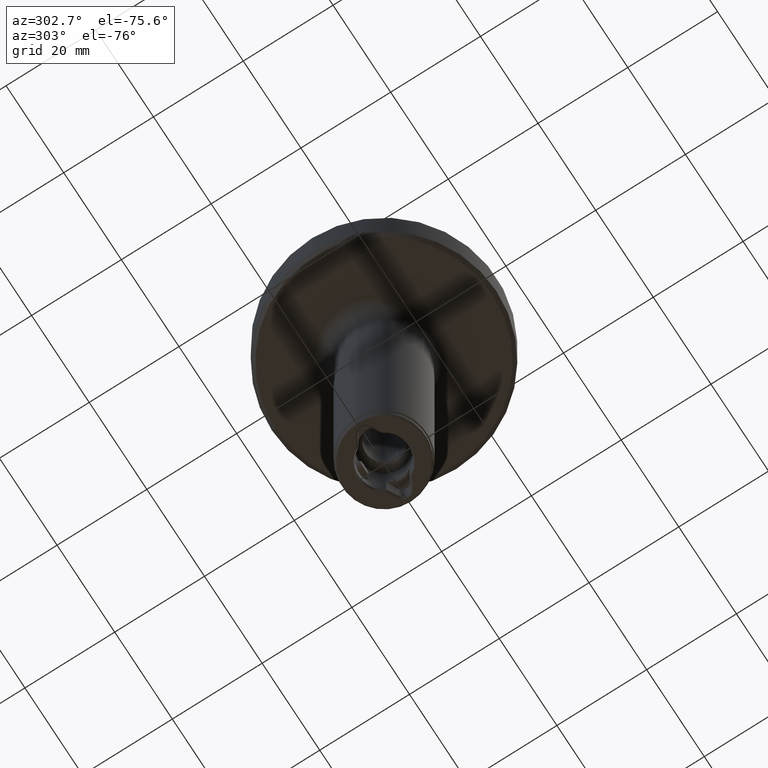
[diagram: clean part render]
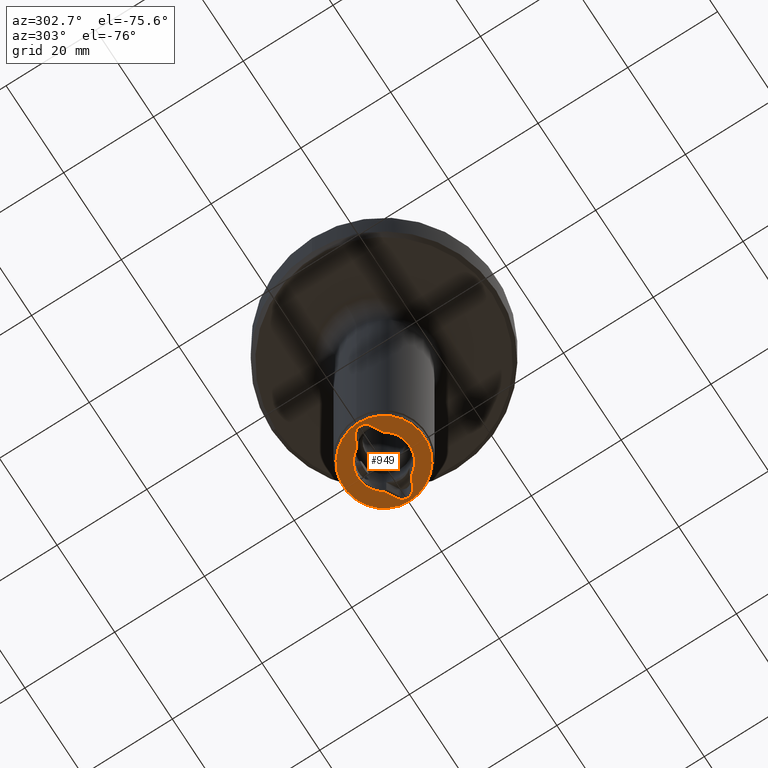
[diagram: same view with one face highlighted and labeled with its STEP entity id]
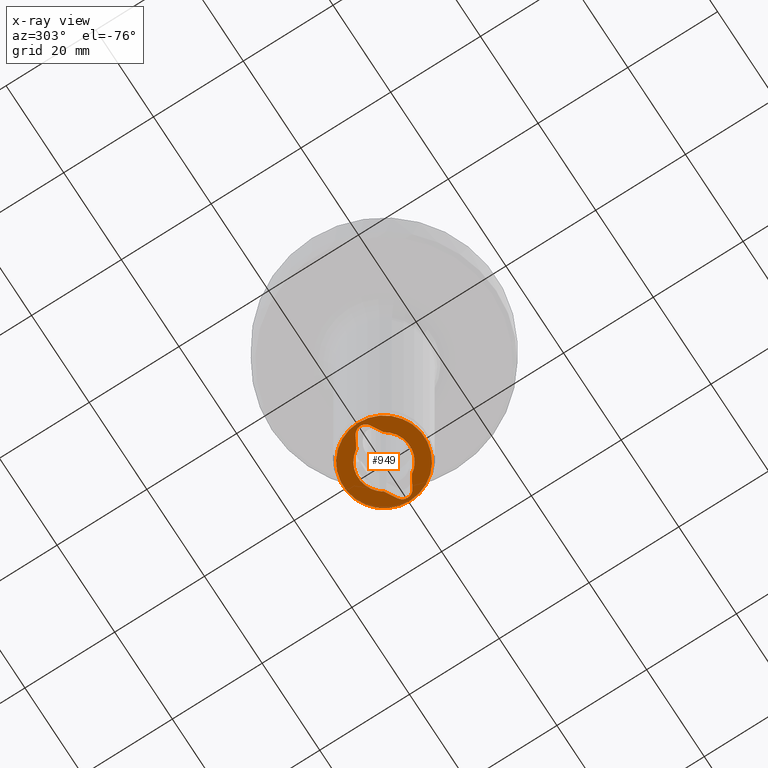
[diagram: x-ray of the same camera — body ghosted, the highlighted face saturated]
A machine part, auxiliary view. The second image highlights one B-rep face of the part: STEP entity #949.
The next image is the same camera in x-ray: the body ghosted, the highlighted face saturated — about 0% of this face is hidden behind the body in this view.
In plain terms, the highlighted planar face has unit normal (0, 0, -1).
Its self-contained STEP definition (entity closure, byte-faithful):
#547=VERTEX_POINT('NONE',#1572);
#593=EDGE_CURVE('NONE',#1399,#1239,#1622,.T.);
#621=EDGE_CURVE('NONE',#1239,#1043,#1653,.T.);
#637=EDGE_CURVE('NONE',#881,#873,#1671,.T.);
#639=VERTEX_POINT('NONE',#1673);
#655=EDGE_CURVE('NONE',#935,#1399,#1692,.T.);
#675=EDGE_CURVE('NONE',#1043,#1487,#1713,.T.);
#711=EDGE_CURVE('NONE',#935,#873,#1752,.T.);
#793=VERTEX_POINT('NONE',#1843);
#849=EDGE_CURVE('NONE',#639,#877,#1904,.T.);
#873=VERTEX_POINT('NONE',#1930);
#877=VERTEX_POINT('NONE',#1934);
#881=VERTEX_POINT('NONE',#1938);
#935=VERTEX_POINT('NONE',#2001);
#949=ADVANCED_FACE('NONE',(#2017,#2018),#2019,.T.);
#1043=VERTEX_POINT('NONE',#2124);
#1101=VERTEX_POINT('NONE',#2191);
#1107=EDGE_CURVE('NONE',#793,#881,#2197,.T.);
#1117=EDGE_CURVE('NONE',#547,#793,#2207,.T.);
#1205=EDGE_CURVE('NONE',#1101,#547,#2304,.T.);
#1239=VERTEX_POINT('',#2342);
#1283=EDGE_CURVE('NONE',#877,#639,#2391,.T.);
#1399=VERTEX_POINT('NONE',#2522);
#1487=VERTEX_POINT('NONE',#2625);
#1525=EDGE_CURVE('NONE',#1101,#1487,#2666,.T.);
#1572=CARTESIAN_POINT('',(-7.30000000000001,-1.64544826719043,-87.5));
#1622=CIRCLE('',#2777,1.9);
#1653=CIRCLE('',#2854,1.9);
#1671=LINE('',#2873,#2874);
#1673=CARTESIAN_POINT('',(-9.0,1.11745329786292E-015,-87.5));
#1692=LINE('',#2900,#2901);
#1713=LINE('',#2963,#2964);
#1752=CIRCLE('',#3053,5.75);
#1843=CARTESIAN_POINT('',(-8.25000000000001,0.0,-87.5));
#1904=CIRCLE('',#3333,9.0);
#1930=CARTESIAN_POINT('',(-4.87847335525206,3.04351732738549,-87.5));
#1934=CARTESIAN_POINT('',(9.0,0.0,-87.5));
#1938=CARTESIAN_POINT('',(-7.29999999999999,1.64544826719044,-87.5));
#2001=CARTESIAN_POINT('',(4.87847335525205,3.0435173273855,-87.5));
#2017=FACE_OUTER_BOUND('',#3489,.T.);
#2018=FACE_BOUND('',#3490,.T.);
#2019=PLANE('',#3491);
#2124=CARTESIAN_POINT('',(7.30000000000002,-1.64544826719043,-87.5));
#2191=CARTESIAN_POINT('',(-4.87847335525203,-3.04351732738553,-87.5));
#2197=CIRCLE('',#3738,1.9);
#2207=CIRCLE('',#3753,1.9);
#2304=LINE('',#3896,#3897);
#2342=CARTESIAN_POINT('',(8.25000000000002,-2.32675207226252E-016,-87.5));
#2391=CIRCLE('',#4041,9.0);
#2522=CARTESIAN_POINT('',(7.30000000000001,1.64544826719044,-87.5));
#2625=CARTESIAN_POINT('',(4.87847335525203,-3.04351732738554,-87.5));
#2666=CIRCLE('',#4486,5.75);
#2777=AXIS2_PLACEMENT_3D('',#4589,#4590,#4591);
#2854=AXIS2_PLACEMENT_3D('',#4622,#4623,#4624);
#2873=CARTESIAN_POINT('',(-7.29999999999999,1.64544826719044,-87.5));
#2874=VECTOR('',#4643,1000.0);
#2900=CARTESIAN_POINT('',(1.48974596215555,5.0,-87.5));
#2901=VECTOR('',#4670,1000.0);
#2963=CARTESIAN_POINT('',(7.30000000000002,-1.64544826719043,-87.5));
#2964=VECTOR('',#4695,1000.0);
#3053=AXIS2_PLACEMENT_3D('',#4740,#4741,#4742);
#3333=AXIS2_PLACEMENT_3D('',#4906,#4907,#4908);
#3489=EDGE_LOOP('',(#5038,#5039));
#3490=EDGE_LOOP('',(#5040,#5041,#5042,#5043,#5044,#5045,#5046,#5047,#5048,#5049));
#3491=AXIS2_PLACEMENT_3D('',#5050,#5051,#5052);
#3738=AXIS2_PLACEMENT_3D('',#5278,#5279,#5280);
#3753=AXIS2_PLACEMENT_3D('',#5288,#5289,#5290);
#3896=CARTESIAN_POINT('',(-1.48974596215564,-5.0,-87.5));
#3897=VECTOR('',#5409,1000.0);
#4041=AXIS2_PLACEMENT_3D('',#5509,#5510,#5511);
#4486=AXIS2_PLACEMENT_3D('',#5872,#5873,#5874);
#4589=CARTESIAN_POINT('',(6.35000000000002,0.0,-87.5));
#4590=DIRECTION('',(0.0,0.0,-1.0));
#4591=DIRECTION('',(-1.0,0.0,0.0));
#4622=CARTESIAN_POINT('',(6.35000000000002,0.0,-87.5));
#4623=DIRECTION('',(0.0,0.0,-1.0));
#4624=DIRECTION('',(-1.0,0.0,0.0));
#4643=DIRECTION('',(0.866025403784442,0.499999999999995,0.0));
#4670=DIRECTION('',(0.866025403784442,-0.499999999999995,-0.0));
#4695=DIRECTION('',(-0.866025403784438,-0.500000000000001,0.0));
#4740=CARTESIAN_POINT('',(0.0,0.0,-87.5));
#4741=DIRECTION('',(0.0,0.0,1.0));
#4742=DIRECTION('',(1.0,0.0,0.0));
#4906=CARTESIAN_POINT('',(0.0,0.0,-87.5));
#4907=DIRECTION('',(0.0,0.0,1.0));
#4908=DIRECTION('',(1.0,0.0,0.0));
#5038=ORIENTED_EDGE('',*,*,#1283,.F.);
#5039=ORIENTED_EDGE('',*,*,#849,.F.);
#5040=ORIENTED_EDGE('',*,*,#637,.F.);
#5041=ORIENTED_EDGE('',*,*,#1107,.F.);
#5042=ORIENTED_EDGE('',*,*,#1117,.F.);
#5043=ORIENTED_EDGE('',*,*,#1205,.F.);
#5044=ORIENTED_EDGE('',*,*,#1525,.T.);
#5045=ORIENTED_EDGE('',*,*,#675,.F.);
#5046=ORIENTED_EDGE('',*,*,#621,.F.);
#5047=ORIENTED_EDGE('',*,*,#593,.F.);
#5048=ORIENTED_EDGE('',*,*,#655,.F.);
#5049=ORIENTED_EDGE('',*,*,#711,.T.);
#5050=CARTESIAN_POINT('',(0.0,0.0,-87.5));
#5051=DIRECTION('',(0.0,0.0,-1.0));
#5052=DIRECTION('',(0.0,1.0,0.0));
#5278=CARTESIAN_POINT('',(-6.35000000000001,0.0,-87.5));
#5279=DIRECTION('',(0.0,0.0,-1.0));
#5280=DIRECTION('',(-1.0,0.0,0.0));
#5288=CARTESIAN_POINT('',(-6.35000000000001,0.0,-87.5));
#5289=DIRECTION('',(0.0,0.0,-1.0));
#5290=DIRECTION('',(-1.0,0.0,0.0));
#5409=DIRECTION('',(-0.866025403784438,0.500000000000001,0.0));
#5509=CARTESIAN_POINT('',(0.0,0.0,-87.5));
#5510=DIRECTION('',(0.0,0.0,1.0));
#5511=DIRECTION('',(1.0,0.0,0.0));
#5872=CARTESIAN_POINT('',(0.0,0.0,-87.5));
#5873=DIRECTION('',(0.0,0.0,1.0));
#5874=DIRECTION('',(1.0,0.0,0.0));